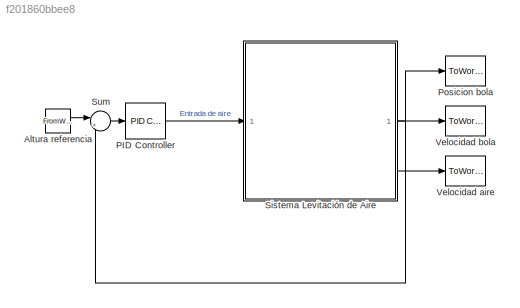
MODEL slx_f201860bbee8
KIND model
CONFIG AbsTol = auto
CONFIG EnableMultiTasking = off
CONFIG FixedStep = auto
CONFIG MaxStep = 0.01
CONFIG MinStep = auto
CONFIG RelTol = 1e-3
CONFIG SampleTimeConstraint = Unconstrained
CONFIG SolverName = VariableStepAuto
CONFIG StartTime = 0.0
CONFIG StopTime = 12
BLOCK [FromWorkspace] Altura referencia
  SampleTime = Ts
  VariableName = u
BLOCK [Reference] PID Controller  REF=slpidlib/PID Controller
  LibrarySourceBlock = simulink/Continuous/PID Controller
  SourceBlock = slpidlib/PID Controller
  SourceType = PID 1dof
BLOCK [ToWorkspace] Posicion bola
  FixptAsFi = on
  MaxDataPoints = inf
  SampleTime = -1
  SaveFormat = Timeseries
  VariableName = y
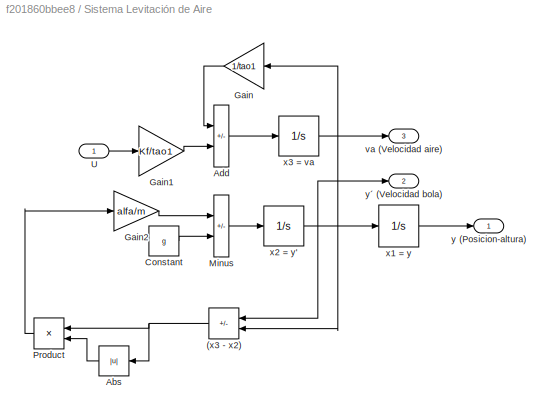
BLOCK [SubSystem] Sistema Levitación de Aire
  ShowPortLabels = none
BLOCK [Sum] Sistema Levitación de Aire/(x3 - x2)
  IconShape = rectangular
  Inputs = -+
BLOCK [Abs] Sistema Levitación de Aire/Abs
  SaturateOnIntegerOverflow = off
BLOCK [Sum] Sistema Levitación de Aire/Add
  IconShape = rectangular
  Inputs = -+
BLOCK [Constant] Sistema Levitación de Aire/Constant
  Value = g
BLOCK [Gain] Sistema Levitación de Aire/Gain
  Gain = 1/tao1
BLOCK [Gain] Sistema Levitación de Aire/Gain1
  Gain = Kf/tao1
BLOCK [Gain] Sistema Levitación de Aire/Gain2
  Gain = alfa/m
BLOCK [Sum] Sistema Levitación de Aire/Minus
  IconShape = rectangular
  Inputs = +-
BLOCK [Product] Sistema Levitación de Aire/Product
BLOCK [Inport] Sistema Levitación de Aire/U
BLOCK [Outport] Sistema Levitación de Aire/va (Velocidad aire)
  Port = 3
BLOCK [Integrator] Sistema Levitación de Aire/x1 = y
  InitialCondition = ci(1)
BLOCK [Integrator] Sistema Levitación de Aire/x2 = y'
  InitialCondition = ci(2)
BLOCK [Integrator] Sistema Levitación de Aire/x3 = va
  InitialCondition = ci(3)
BLOCK [Outport] Sistema Levitación de Aire/y (Posicion-altura)
  IconDisplay = Port number and signal name
BLOCK [Outport] Sistema Levitación de Aire/y´ (Velocidad bola)
  Port = 2
BLOCK [Sum] Sum
  Inputs = |+-
BLOCK [ToWorkspace] Velocidad aire
  FixptAsFi = on
  MaxDataPoints = inf
  SampleTime = -1
  SaveFormat = Timeseries
  VariableName = va
BLOCK [ToWorkspace] Velocidad bola
  FixptAsFi = on
  MaxDataPoints = inf
  SampleTime = -1
  SaveFormat = Timeseries
  VariableName = dy
LINE Altura referencia:1 -> Sum:1
LINE PID Controller:1 -> Sistema Levitación de Aire:1
NET Sistema Levitación de Aire/(x3 - x2):1 -> Sistema Levitación de Aire/Abs:1, Sistema Levitación de Aire/Product:1
LINE Sistema Levitación de Aire/Abs:1 -> Sistema Levitación de Aire/Product:2
LINE Sistema Levitación de Aire/Add:1 -> Sistema Levitación de Aire/x3 = va:1
LINE Sistema Levitación de Aire/Constant:1 -> Sistema Levitación de Aire/Minus:2
LINE Sistema Levitación de Aire/Gain1:1 -> Sistema Levitación de Aire/Add:2
LINE Sistema Levitación de Aire/Gain2:1 -> Sistema Levitación de Aire/Minus:1
LINE Sistema Levitación de Aire/Gain:1 -> Sistema Levitación de Aire/Add:1
LINE Sistema Levitación de Aire/Minus:1 -> Sistema Levitación de Aire/x2 = y':1
LINE Sistema Levitación de Aire/Product:1 -> Sistema Levitación de Aire/Gain2:1
LINE Sistema Levitación de Aire/U:1 -> Sistema Levitación de Aire/Gain1:1
LINE Sistema Levitación de Aire/x1 = y:1 -> Sistema Levitación de Aire/y (Posicion-altura):1
NET Sistema Levitación de Aire/x2 = y':1 -> Sistema Levitación de Aire/(x3 - x2):1, Sistema Levitación de Aire/x1 = y:1, Sistema Levitación de Aire/y´ (Velocidad bola):1
NET Sistema Levitación de Aire/x3 = va:1 -> Sistema Levitación de Aire/(x3 - x2):2, Sistema Levitación de Aire/Gain:1, Sistema Levitación de Aire/va (Velocidad aire):1
NET Sistema Levitación de Aire:1 -> Posicion bola:1, Sum:2
LINE Sistema Levitación de Aire:2 -> Velocidad bola:1
LINE Sistema Levitación de Aire:3 -> Velocidad aire:1
LINE Sum:1 -> PID Controller:1
note: NET lines group one-source signal fan-out (src -> all destinations, sorted); 1:1 wires keep LINE
